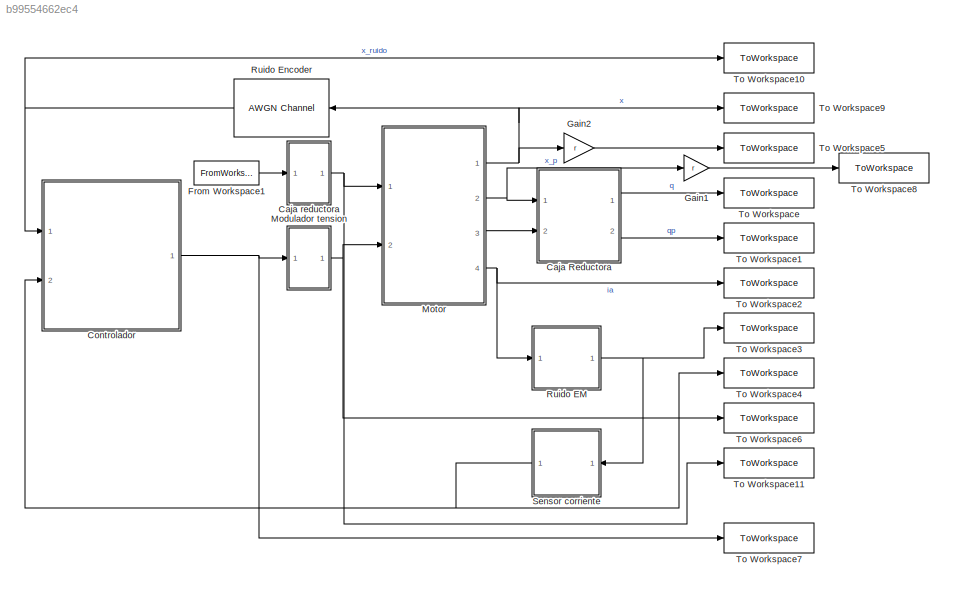
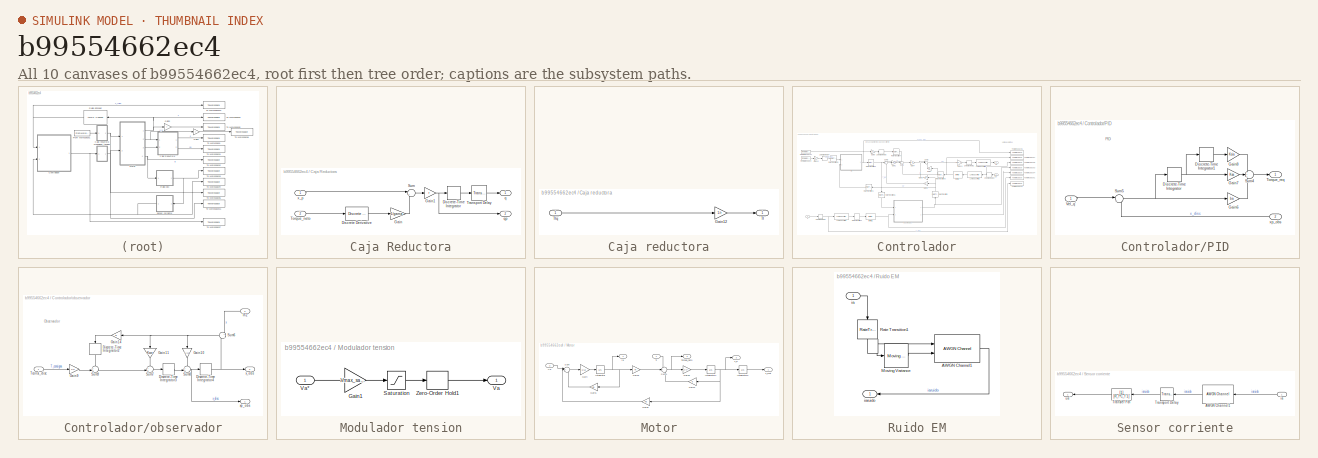
[diagram: thumbnail index - all 10 canvases of the model, root first then tree order]
MODEL slx_b99554662ec4
KIND model
CONFIG AbsTol = auto
CONFIG EnableMultiTasking = off
CONFIG FixedStep = auto
CONFIG MaxStep = auto
CONFIG MinStep = 2e-6
CONFIG RelTol = 1e-3
CONFIG SampleTimeConstraint = Unconstrained
CONFIG SolverName = VariableStepAuto
CONFIG StartTime = 0.0
CONFIG StopTime = 10.0
WORKSPACE source: mxarray member
WORKSPACE potencia = 0.1
BLOCK [SubSystem] Caja Reductora
  Ports = [2, 2]
  RequestExecContextInheritance = off
BLOCK [Reference] Caja Reductora/Discrete Derivative  REF=simulink/Discrete/Discrete Derivative
  Ports = [1, 1]
  SourceBlock = simulink/Discrete/Discrete Derivative
  SourceProductBaseCode = SL
  SourceType = Discrete Derivative
BLOCK [DiscreteIntegrator] Caja Reductora/Discrete-Time Integrator
  ICPrevOutput = DiscIntNeverNeededParam
  ICPrevScaledInput = DiscIntNeverNeededParam
  InitialConditionSetting = Auto
  Ports = [1, 1]
  SampleTime = -1
BLOCK [Gain] Caja Reductora/Gain
  Gain = 1/gama
BLOCK [Gain] Caja Reductora/Gain1
  Gain = r
BLOCK [Sum] Caja Reductora/Sum
  Inputs = |+-
  Ports = [2, 1]
BLOCK [Inport] Caja Reductora/Torque_neto
  Port = 2
BLOCK [TransportDelay] Caja Reductora/Transport Delay
  DelayTime = 1e-6
  Ports = [1, 1]
BLOCK [Outport] Caja Reductora/q
BLOCK [Outport] Caja Reductora/qp
  Port = 2
BLOCK [Inport] Caja Reductora/x_p
BLOCK [SubSystem] Caja reductora
  Ports = [1, 1]
  RequestExecContextInheritance = off
BLOCK [Gain] Caja reductora/Gain12
  Gain = 1/r
BLOCK [Outport] Caja reductora/Tl
BLOCK [Inport] Caja reductora/Tlq
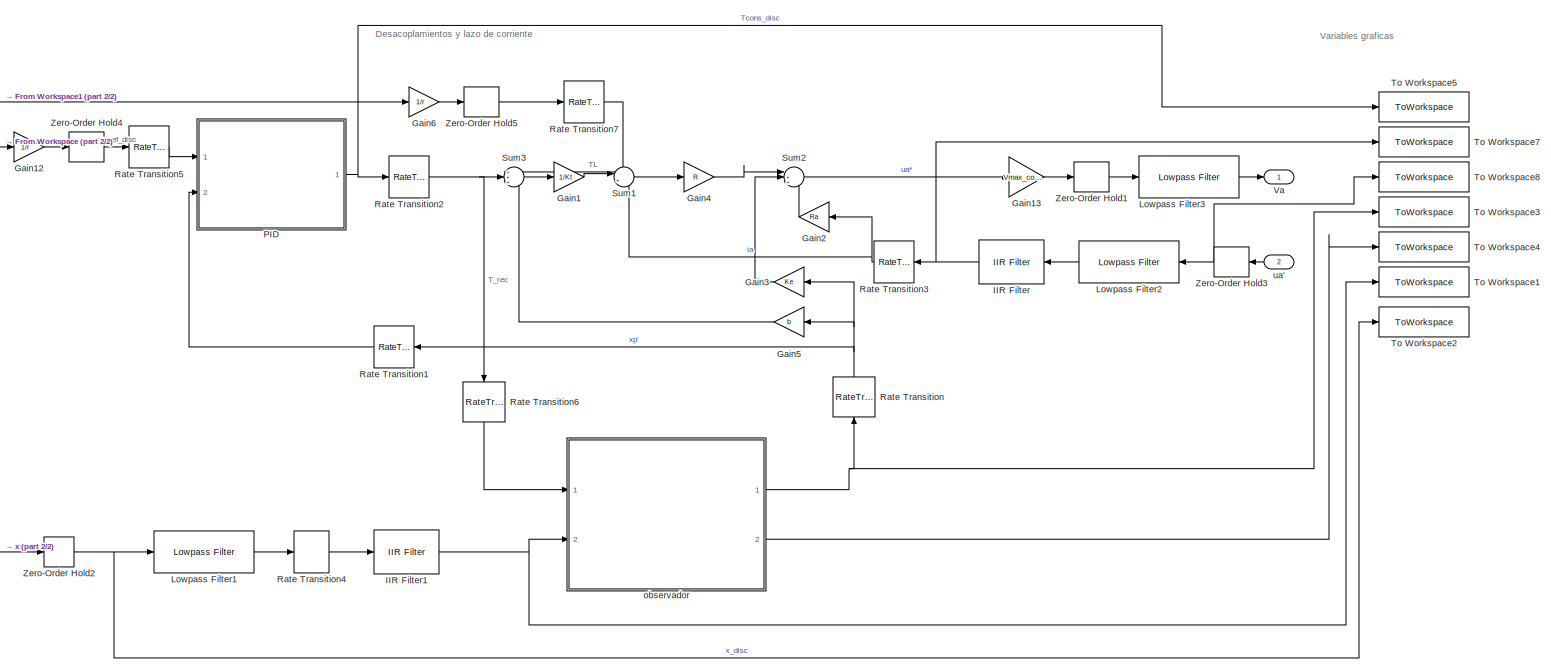
[diagram: Controlador - part 1/2, most of the canvas]
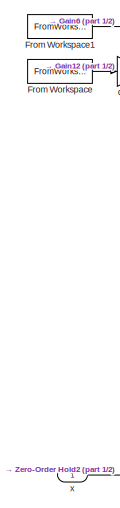
[diagram: Controlador - part 2/2, middle left region]
BLOCK [SubSystem] Controlador
  Ports = [2, 1]
  RequestExecContextInheritance = off
BLOCK [FromWorkspace] Controlador/From Workspace
  VariableName = Vel_q
BLOCK [FromWorkspace] Controlador/From Workspace1
  VariableName = Torque
BLOCK [Gain] Controlador/Gain1
  Gain = 1/Kt
BLOCK [Gain] Controlador/Gain12
  Gain = 1/r
BLOCK [Gain] Controlador/Gain13
  Gain = Vmax_controlador/Vmax_salida
BLOCK [Gain] Controlador/Gain2
  Gain = Ra
  NameLocation = top
BLOCK [Gain] Controlador/Gain3
  Gain = Ke
  NameLocation = top
BLOCK [Gain] Controlador/Gain4
  Gain = R
BLOCK [Gain] Controlador/Gain5
  Gain = b
  NameLocation = top
BLOCK [Gain] Controlador/Gain6
  Gain = 1/r
BLOCK [Reference] Controlador/IIR Filter  REF=mcbcontrolslib/IIR Filter
  NameLocation = top
  Ports = [1, 1]
  SourceBlock = mcbcontrolslib/IIR Filter
  SourceProductBaseCode = MT
  SourceType = IIR Filter
BLOCK [Reference] Controlador/IIR Filter1  REF=mcbcontrolslib/IIR Filter
  Ports = [1, 1]
  SourceBlock = mcbcontrolslib/IIR Filter
  SourceProductBaseCode = MT
  SourceType = IIR Filter
BLOCK [Reference] Controlador/Lowpass Filter1  REF=dspfdesign/Lowpass Filter
  Ports = [1, 1]
  SourceBlock = dspfdesign/Lowpass Filter
  SourceProductBaseCode = DS
  SourceType = dsp.LowpassFilter
BLOCK [Reference] Controlador/Lowpass Filter2  REF=dspfdesign/Lowpass Filter
  NameLocation = top
  Ports = [1, 1]
  SourceBlock = dspfdesign/Lowpass Filter
  SourceProductBaseCode = DS
  SourceType = dsp.LowpassFilter
BLOCK [Reference] Controlador/Lowpass Filter3  REF=dspfdesign/Lowpass Filter
  Ports = [1, 1]
  SourceBlock = dspfdesign/Lowpass Filter
  SourceProductBaseCode = DS
  SourceType = dsp.LowpassFilter
BLOCK [SubSystem] Controlador/PID
  Ports = [2, 1]
  RequestExecContextInheritance = off
BLOCK [DiscreteIntegrator] Controlador/PID/Discrete-Time Integrator
  ICPrevOutput = DiscIntNeverNeededParam
  ICPrevScaledInput = DiscIntNeverNeededParam
  InitialConditionSetting = Auto
  Ports = [1, 1]
  SampleTime = -1
BLOCK [DiscreteIntegrator] Controlador/PID/Discrete-Time Integrator1
  ICPrevOutput = DiscIntNeverNeededParam
  ICPrevScaledInput = DiscIntNeverNeededParam
  InitialConditionSetting = Auto
  Ports = [1, 1]
  SampleTime = -1
BLOCK [Gain] Controlador/PID/Gain6
  Gain = ba
BLOCK [Gain] Controlador/PID/Gain7
  Gain = Ksa
BLOCK [Gain] Controlador/PID/Gain8
  Gain = Ksia
BLOCK [Sum] Controlador/PID/Sum4
  Inputs = +++
  Ports = [3, 1]
BLOCK [Sum] Controlador/PID/Sum5
  Inputs = |+-
  Ports = [2, 1]
BLOCK [Outport] Controlador/PID/Torque_req
BLOCK [Inport] Controlador/PID/Vel_q'
BLOCK [Inport] Controlador/PID/xp_obs
  Port = 2
BLOCK [RateTransition] Controlador/Rate Transition
  NameLocation = right
  OutPortSampleTime = 1/(w_ia*mult)
BLOCK [RateTransition] Controlador/Rate Transition1
  NameLocation = top
  OutPortSampleTime = 1/(ohmega_pos*mult)
BLOCK [RateTransition] Controlador/Rate Transition2
  OutPortSampleTime = 1/(w_ia*mult)
BLOCK [RateTransition] Controlador/Rate Transition3
  NameLocation = top
  OutPortSampleTime = 1/(w_ia*mult)
BLOCK [RateTransition] Controlador/Rate Transition4
  OutPortSampleTime = 1/(ohmega_obser*mult)
BLOCK [RateTransition] Controlador/Rate Transition5
  OutPortSampleTime = 1/(ohmega_pos*mult)
BLOCK [RateTransition] Controlador/Rate Transition6
  NameLocation = left
  OutPortSampleTime = 1/(ohmega_obser*mult)
BLOCK [RateTransition] Controlador/Rate Transition7
  OutPortSampleTime = 1/(w_ia*mult)
BLOCK [Sum] Controlador/Sum1
  Inputs = |+-
  Ports = [2, 1]
BLOCK [Sum] Controlador/Sum2
  Inputs = |+++
  Ports = [3, 1]
BLOCK [Sum] Controlador/Sum3
  Inputs = +++
  Ports = [3, 1]
BLOCK [ToWorkspace] Controlador/To Workspace1
  FixptAsFi = on
  MaxDataPoints = inf
  Ports = [1]
  SampleTime = -1
  SaveFormat = Timeseries
  VariableName = x_filtrada
BLOCK [ToWorkspace] Controlador/To Workspace2
  FixptAsFi = on
  MaxDataPoints = inf
  Ports = [1]
  SampleTime = -1
  SaveFormat = Timeseries
  VariableName = x_sin_filtrar
BLOCK [ToWorkspace] Controlador/To Workspace3
  FixptAsFi = on
  MaxDataPoints = inf
  Ports = [1]
  SampleTime = -1
  SaveFormat = Timeseries
  VariableName = x_obs
BLOCK [ToWorkspace] Controlador/To Workspace4
  FixptAsFi = on
  MaxDataPoints = inf
  Ports = [1]
  SampleTime = -1
  SaveFormat = Timeseries
  VariableName = xp_obs
BLOCK [ToWorkspace] Controlador/To Workspace5
  FixptAsFi = on
  MaxDataPoints = inf
  Ports = [1]
  SampleTime = -1
  SaveFormat = Timeseries
  VariableName = Torque_PID
BLOCK [ToWorkspace] Controlador/To Workspace7
  FixptAsFi = on
  MaxDataPoints = inf
  Ports = [1]
  SampleTime = -1
  SaveFormat = Timeseries
  VariableName = ia_filtrada
BLOCK [ToWorkspace] Controlador/To Workspace8
  FixptAsFi = on
  MaxDataPoints = inf
  Ports = [1]
  SampleTime = -1
  SaveFormat = Timeseries
  VariableName = ia_sin_filtrar
BLOCK [Outport] Controlador/Va
BLOCK [ZeroOrderHold] Controlador/Zero-Order Hold1
  SampleTime = 1/f_mues
BLOCK [ZeroOrderHold] Controlador/Zero-Order Hold2
  NameLocation = top
  SampleTime = 1/f_mues
BLOCK [ZeroOrderHold] Controlador/Zero-Order Hold3
  NameLocation = top
  SampleTime = 1/f_mues
BLOCK [ZeroOrderHold] Controlador/Zero-Order Hold4
  NameLocation = top
  SampleTime = 1/f_mues
BLOCK [ZeroOrderHold] Controlador/Zero-Order Hold5
  NameLocation = top
  SampleTime = 1/f_mues
BLOCK [SubSystem] Controlador/observador
  Ports = [2, 2]
  RequestExecContextInheritance = off
BLOCK [DiscreteIntegrator] Controlador/observador/Discrete-Time Integrator2
  ICPrevOutput = DiscIntNeverNeededParam
  ICPrevScaledInput = DiscIntNeverNeededParam
  InitialConditionSetting = Auto
  NameLocation = left
  Ports = [1, 1]
  SampleTime = -1
BLOCK [DiscreteIntegrator] Controlador/observador/Discrete-Time Integrator3
  ICPrevOutput = DiscIntNeverNeededParam
  ICPrevScaledInput = DiscIntNeverNeededParam
  InitialConditionSetting = Auto
  Ports = [1, 1]
  SampleTime = -1
BLOCK [DiscreteIntegrator] Controlador/observador/Discrete-Time Integrator4
  ICPrevOutput = DiscIntNeverNeededParam
  ICPrevScaledInput = DiscIntNeverNeededParam
  InitialConditionSetting = Auto
  Ports = [1, 1]
  SampleTime = -1
BLOCK [Gain] Controlador/observador/Gain10
  Gain = Kto
  NameLocation = left
BLOCK [Gain] Controlador/observador/Gain11
  Gain = Kwo
  NameLocation = left
BLOCK [Gain] Controlador/observador/Gain14
  Gain = B
  NameLocation = top
BLOCK [Gain] Controlador/observador/Gain9
  Gain = 1/Jl
BLOCK [Inport] Controlador/observador/In2
  Port = 2
BLOCK [Sum] Controlador/observador/Sum6
  Inputs = +|-
  NameLocation = top
  Ports = [2, 1]
BLOCK [Sum] Controlador/observador/Sum7
  Inputs = ++|
  Ports = [2, 1]
BLOCK [Sum] Controlador/observador/Sum8
  Inputs = ++|
  Ports = [2, 1]
BLOCK [Sum] Controlador/observador/Sum9
  Inputs = ++|
  Ports = [2, 1]
BLOCK [Inport] Controlador/observador/Tconsi_disc
BLOCK [Outport] Controlador/observador/x_obs
  Port = 2
BLOCK [Outport] Controlador/observador/xp_obs
BLOCK [Inport] Controlador/ua'
  NameLocation = top
  Port = 2
BLOCK [Inport] Controlador/x
BLOCK [FromWorkspace] From Workspace1
  VariableName = Torque
BLOCK [Gain] Gain1
  Gain = r
BLOCK [Gain] Gain2
  Gain = r
BLOCK [SubSystem] Modulador tension
  Ports = [1, 1]
  RequestExecContextInheritance = off
BLOCK [Gain] Modulador tension/Gain1
  Gain = Vmax_salida/Vmax_controlador
BLOCK [Saturate] Modulador tension/Saturation
  LowerLimit = -60
  UpperLimit = 60
BLOCK [Outport] Modulador tension/Va
BLOCK [Inport] Modulador tension/Va*
BLOCK [ZeroOrderHold] Modulador tension/Zero-Order Hold1
  SampleTime = time_MV
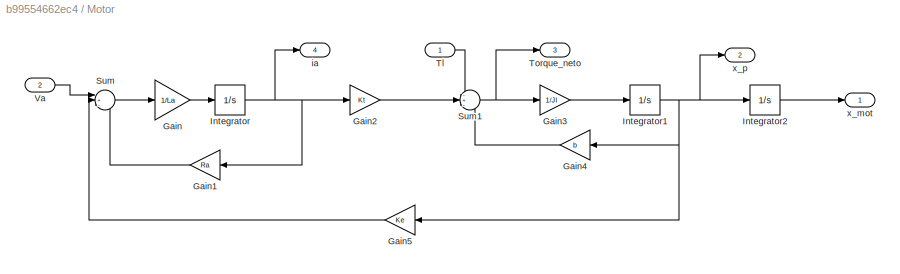
BLOCK [SubSystem] Motor
  Ports = [2, 4]
  RequestExecContextInheritance = off
BLOCK [Gain] Motor/Gain
  Gain = 1/La
BLOCK [Gain] Motor/Gain1
  Gain = Ra
  NameLocation = top
BLOCK [Gain] Motor/Gain2
  Gain = Kt
BLOCK [Gain] Motor/Gain3
  Gain = 1/Jl
BLOCK [Gain] Motor/Gain4
  Gain = b
  NameLocation = top
BLOCK [Gain] Motor/Gain5
  Gain = Ke
  NameLocation = top
BLOCK [Integrator] Motor/Integrator
  Ports = [1, 1]
BLOCK [Integrator] Motor/Integrator1
  Ports = [1, 1]
BLOCK [Integrator] Motor/Integrator2
  Ports = [1, 1]
BLOCK [Sum] Motor/Sum
  Inputs = |+--
  Ports = [3, 1]
BLOCK [Sum] Motor/Sum1
  Inputs = -+-
  Ports = [3, 1]
BLOCK [Inport] Motor/Tl
BLOCK [Outport] Motor/Torque_neto
  Port = 3
BLOCK [Inport] Motor/Va
  Port = 2
BLOCK [Outport] Motor/ia
  Port = 4
BLOCK [Outport] Motor/x_mot
BLOCK [Outport] Motor/x_p
  Port = 2
BLOCK [SubSystem] Ruido EM
  Ports = [1, 1]
  RequestExecContextInheritance = off
BLOCK [Reference] Ruido EM/AWGN Channel1  REF=commchan3/AWGN
Channel
  Ports = [2, 1]
  SourceBlock = commchan3/AWGN\nChannel
  SourceProductBaseCode = CM
  SourceType = AWGN Channel
  UserDataPersistent = on
BLOCK [Reference] Ruido EM/Moving Variance  REF=dspstat3/Moving
Variance
  Ports = [1, 1]
  SourceBlock = dspstat3/Moving\nVariance
  SourceProductBaseCode = DS
  SourceType = dsp.simulink.MovingVariance
BLOCK [RateTransition] Ruido EM/Rate Transition1
  NameLocation = left
  OutPortSampleTime = 1/(w_ia*25)
BLOCK [Inport] Ruido EM/ia
BLOCK [Outport] Ruido EM/iaruido
BLOCK [Reference] Ruido Encoder  REF=commchan3/AWGN
Channel
  NameLocation = top
  Ports = [1, 1]
  SourceBlock = commchan3/AWGN\nChannel
  SourceProductBaseCode = CM
  SourceType = AWGN Channel
  UserDataPersistent = on
BLOCK [SubSystem] Sensor corriente
  Ports = [1, 1]
  RequestExecContextInheritance = off
BLOCK [Reference] Sensor corriente/AWGN Channel1  REF=commchan3/AWGN
Channel
  NameLocation = top
  Ports = [1, 1]
  SourceBlock = commchan3/AWGN\nChannel
  SourceProductBaseCode = CM
  SourceType = AWGN Channel
  UserDataPersistent = on
BLOCK [TransferFcn] Sensor corriente/Transfer Fcn
  Denominator = [R_f*C_f 1]
  NameLocation = top
BLOCK [TransportDelay] Sensor corriente/Transport Delay
  DelayTime = 1e-6
  NameLocation = top
  Ports = [1, 1]
BLOCK [Inport] Sensor corriente/ia
BLOCK [Outport] Sensor corriente/ua'
BLOCK [ToWorkspace] To Workspace
  FixptAsFi = on
  MaxDataPoints = inf
  Ports = [1]
  SampleTime = -1
  SaveFormat = Timeseries
  VariableName = q
BLOCK [ToWorkspace] To Workspace1
  FixptAsFi = on
  MaxDataPoints = inf
  Ports = [1]
  SampleTime = -1
  SaveFormat = Timeseries
  VariableName = qp
BLOCK [ToWorkspace] To Workspace10
  FixptAsFi = on
  MaxDataPoints = inf
  Ports = [1]
  SampleTime = -1
  SaveFormat = Timeseries
  VariableName = x_ruido
BLOCK [ToWorkspace] To Workspace11
  Commented = on
  FixptAsFi = on
  MaxDataPoints = inf
  Ports = [1]
  SampleTime = -1
  SaveFormat = Timeseries
  VariableName = Torque_pertubador1
BLOCK [ToWorkspace] To Workspace2
  FixptAsFi = on
  MaxDataPoints = inf
  Ports = [1]
  SampleTime = -1
  SaveFormat = Timeseries
  VariableName = ia
BLOCK [ToWorkspace] To Workspace3
  FixptAsFi = on
  MaxDataPoints = inf
  Ports = [1]
  SampleTime = -1
  SaveFormat = Timeseries
  VariableName = ia_ruido
BLOCK [ToWorkspace] To Workspace4
  FixptAsFi = on
  MaxDataPoints = inf
  Ports = [1]
  SampleTime = -1
  SaveFormat = Timeseries
  VariableName = ua_sensor
BLOCK [ToWorkspace] To Workspace5
  FixptAsFi = on
  MaxDataPoints = inf
  Ports = [1]
  SampleTime = -1
  SaveFormat = Timeseries
  VariableName = q_rigido
BLOCK [ToWorkspace] To Workspace6
  FixptAsFi = on
  MaxDataPoints = inf
  Ports = [1]
  SampleTime = -1
  SaveFormat = Timeseries
  VariableName = Tension_mod
BLOCK [ToWorkspace] To Workspace7
  FixptAsFi = on
  MaxDataPoints = inf
  Ports = [1]
  SampleTime = -1
  SaveFormat = Timeseries
  VariableName = Tension_contr
BLOCK [ToWorkspace] To Workspace8
  FixptAsFi = on
  MaxDataPoints = inf
  Ports = [1]
  SampleTime = -1
  SaveFormat = Timeseries
  VariableName = qp_rigido
BLOCK [ToWorkspace] To Workspace9
  FixptAsFi = on
  MaxDataPoints = inf
  Ports = [1]
  SampleTime = -1
  SaveFormat = Timeseries
  VariableName = x
ANNOTATION Controlador: Desacoplamientos y lazo de corriente
ANNOTATION Controlador: Variables graficas
ANNOTATION Controlador/PID: PID
ANNOTATION Controlador/observador: Observador
LINE Caja Reductora/Discrete Derivative:1 -> Caja Reductora/Gain:1
LINE Caja Reductora/Discrete-Time Integrator:1 -> Caja Reductora/Transport Delay:1
NET Caja Reductora/Gain1:1 -> Caja Reductora/Discrete-Time Integrator:1, Caja Reductora/qp:1
LINE Caja Reductora/Gain:1 -> Caja Reductora/Sum:2
LINE Caja Reductora/Sum:1 -> Caja Reductora/Gain1:1
LINE Caja Reductora/Torque_neto:1 -> Caja Reductora/Discrete Derivative:1
LINE Caja Reductora/Transport Delay:1 -> Caja Reductora/q:1
LINE Caja Reductora/x_p:1 -> Caja Reductora/Sum:1
LINE Caja Reductora:1 -> To Workspace:1
LINE Caja Reductora:2 -> To Workspace1:1
LINE Caja reductora/Gain12:1 -> Caja reductora/Tl:1
LINE Caja reductora/Tlq:1 -> Caja reductora/Gain12:1
NET Caja reductora:1 -> Motor:1, To Workspace11:1
LINE Controlador/From Workspace1:1 -> Controlador/Gain6:1
LINE Controlador/From Workspace:1 -> Controlador/Gain12:1
LINE Controlador/Gain12:1 -> Controlador/Zero-Order Hold4:1
LINE Controlador/Gain13:1 -> Controlador/Zero-Order Hold1:1
LINE Controlador/Gain1:1 -> Controlador/Sum1:1
LINE Controlador/Gain2:1 -> Controlador/Sum2:3
LINE Controlador/Gain3:1 -> Controlador/Sum2:2
LINE Controlador/Gain4:1 -> Controlador/Sum2:1
LINE Controlador/Gain5:1 -> Controlador/Sum3:3
LINE Controlador/Gain6:1 -> Controlador/Zero-Order Hold5:1
NET Controlador/IIR Filter1:1 -> Controlador/To Workspace1:1, Controlador/observador:2
NET Controlador/IIR Filter:1 -> Controlador/Rate Transition3:1, Controlador/To Workspace7:1
LINE Controlador/Lowpass Filter1:1 -> Controlador/Rate Transition4:1
LINE Controlador/Lowpass Filter2:1 -> Controlador/IIR Filter:1
LINE Controlador/Lowpass Filter3:1 -> Controlador/Va:1
LINE Controlador/PID/Discrete-Time Integrator1:1 -> Controlador/PID/Gain8:1
NET Controlador/PID/Discrete-Time Integrator:1 -> Controlador/PID/Discrete-Time Integrator1:1, Controlador/PID/Gain7:1
LINE Controlador/PID/Gain6:1 -> Controlador/PID/Sum4:3
LINE Controlador/PID/Gain7:1 -> Controlador/PID/Sum4:2
LINE Controlador/PID/Gain8:1 -> Controlador/PID/Sum4:1
LINE Controlador/PID/Sum4:1 -> Controlador/PID/Torque_req:1
NET Controlador/PID/Sum5:1 -> Controlador/PID/Discrete-Time Integrator:1, Controlador/PID/Gain6:1
LINE Controlador/PID/Vel_q':1 -> Controlador/PID/Sum5:1
LINE Controlador/PID/xp_obs:1 -> Controlador/PID/Sum5:2
NET Controlador/PID:1 -> Controlador/Rate Transition2:1, Controlador/To Workspace5:1
LINE Controlador/Rate Transition1:1 -> Controlador/PID:2
NET Controlador/Rate Transition2:1 -> Controlador/Rate Transition6:1, Controlador/Sum3:2
NET Controlador/Rate Transition3:1 -> Controlador/Gain2:1, Controlador/Sum1:2
LINE Controlador/Rate Transition4:1 -> Controlador/IIR Filter1:1
LINE Controlador/Rate Transition5:1 -> Controlador/PID:1
LINE Controlador/Rate Transition6:1 -> Controlador/observador:1
LINE Controlador/Rate Transition7:1 -> Controlador/Sum3:1
NET Controlador/Rate Transition:1 -> Controlador/Gain3:1, Controlador/Gain5:1, Controlador/Rate Transition1:1
LINE Controlador/Sum1:1 -> Controlador/Gain4:1
LINE Controlador/Sum2:1 -> Controlador/Gain13:1
LINE Controlador/Sum3:1 -> Controlador/Gain1:1
LINE Controlador/Zero-Order Hold1:1 -> Controlador/Lowpass Filter3:1
NET Controlador/Zero-Order Hold2:1 -> Controlador/Lowpass Filter1:1, Controlador/To Workspace2:1
NET Controlador/Zero-Order Hold3:1 -> Controlador/Lowpass Filter2:1, Controlador/To Workspace8:1
LINE Controlador/Zero-Order Hold4:1 -> Controlador/Rate Transition5:1
LINE Controlador/Zero-Order Hold5:1 -> Controlador/Rate Transition7:1
LINE Controlador/observador/Discrete-Time Integrator2:1 -> Controlador/observador/Sum9:1
LINE Controlador/observador/Discrete-Time Integrator3:1 -> Controlador/observador/Sum8:2
NET Controlador/observador/Discrete-Time Integrator4:1 -> Controlador/observador/Sum6:2, Controlador/observador/x_obs:1
LINE Controlador/observador/Gain10:1 -> Controlador/observador/Sum8:1
LINE Controlador/observador/Gain11:1 -> Controlador/observador/Sum7:1
LINE Controlador/observador/Gain14:1 -> Controlador/observador/Discrete-Time Integrator2:1
LINE Controlador/observador/Gain9:1 -> Controlador/observador/Sum9:2
LINE Controlador/observador/In2:1 -> Controlador/observador/Sum6:1
NET Controlador/observador/Sum6:1 -> Controlador/observador/Gain10:1, Controlador/observador/Gain11:1, Controlador/observador/Gain14:1
LINE Controlador/observador/Sum7:1 -> Controlador/observador/Discrete-Time Integrator3:1
NET Controlador/observador/Sum8:1 -> Controlador/observador/Discrete-Time Integrator4:1, Controlador/observador/xp_obs:1
LINE Controlador/observador/Sum9:1 -> Controlador/observador/Sum7:2
LINE Controlador/observador/Tconsi_disc:1 -> Controlador/observador/Gain9:1
NET Controlador/observador:1 -> Controlador/Rate Transition:1, Controlador/To Workspace3:1
LINE Controlador/observador:2 -> Controlador/To Workspace4:1
LINE Controlador/ua':1 -> Controlador/Zero-Order Hold3:1
LINE Controlador/x:1 -> Controlador/Zero-Order Hold2:1
NET Controlador:1 -> Modulador tension:1, To Workspace7:1
LINE From Workspace1:1 -> Caja reductora:1
LINE Gain1:1 -> To Workspace8:1
LINE Gain2:1 -> To Workspace5:1
LINE Modulador tension/Gain1:1 -> Modulador tension/Saturation:1
LINE Modulador tension/Saturation:1 -> Modulador tension/Zero-Order Hold1:1
LINE Modulador tension/Va*:1 -> Modulador tension/Gain1:1
LINE Modulador tension/Zero-Order Hold1:1 -> Modulador tension/Va:1
NET Modulador tension:1 -> Motor:2, To Workspace6:1
LINE Motor/Gain1:1 -> Motor/Sum:3
LINE Motor/Gain2:1 -> Motor/Sum1:2
LINE Motor/Gain3:1 -> Motor/Integrator1:1
LINE Motor/Gain4:1 -> Motor/Sum1:3
LINE Motor/Gain5:1 -> Motor/Sum:2
LINE Motor/Gain:1 -> Motor/Integrator:1
NET Motor/Integrator1:1 -> Motor/Gain4:1, Motor/Gain5:1, Motor/Integrator2:1, Motor/x_p:1
LINE Motor/Integrator2:1 -> Motor/x_mot:1
NET Motor/Integrator:1 -> Motor/Gain1:1, Motor/Gain2:1, Motor/ia:1
NET Motor/Sum1:1 -> Motor/Gain3:1, Motor/Torque_neto:1
LINE Motor/Sum:1 -> Motor/Gain:1
LINE Motor/Tl:1 -> Motor/Sum1:1
LINE Motor/Va:1 -> Motor/Sum:1
NET Motor:1 -> Gain2:1, Ruido Encoder:1, To Workspace9:1
NET Motor:2 -> Caja Reductora:1, Gain1:1
LINE Motor:3 -> Caja Reductora:2
NET Motor:4 -> Ruido EM:1, To Workspace2:1
LINE Ruido EM/AWGN Channel1:1 -> Ruido EM/iaruido:1
LINE Ruido EM/Moving Variance:1 -> Ruido EM/AWGN Channel1:2
NET Ruido EM/Rate Transition1:1 -> Ruido EM/AWGN Channel1:1, Ruido EM/Moving Variance:1
LINE Ruido EM/ia:1 -> Ruido EM/Rate Transition1:1
NET Ruido EM:1 -> Sensor corriente:1, To Workspace3:1
NET Ruido Encoder:1 -> Controlador:1, To Workspace10:1
LINE Sensor corriente/AWGN Channel1:1 -> Sensor corriente/Transport Delay:1
LINE Sensor corriente/Transfer Fcn:1 -> Sensor corriente/ua':1
LINE Sensor corriente/Transport Delay:1 -> Sensor corriente/Transfer Fcn:1
LINE Sensor corriente/ia:1 -> Sensor corriente/AWGN Channel1:1
NET Sensor corriente:1 -> Controlador:2, To Workspace4:1
note: NET lines group one-source signal fan-out (src -> all destinations, sorted); 1:1 wires keep LINE
